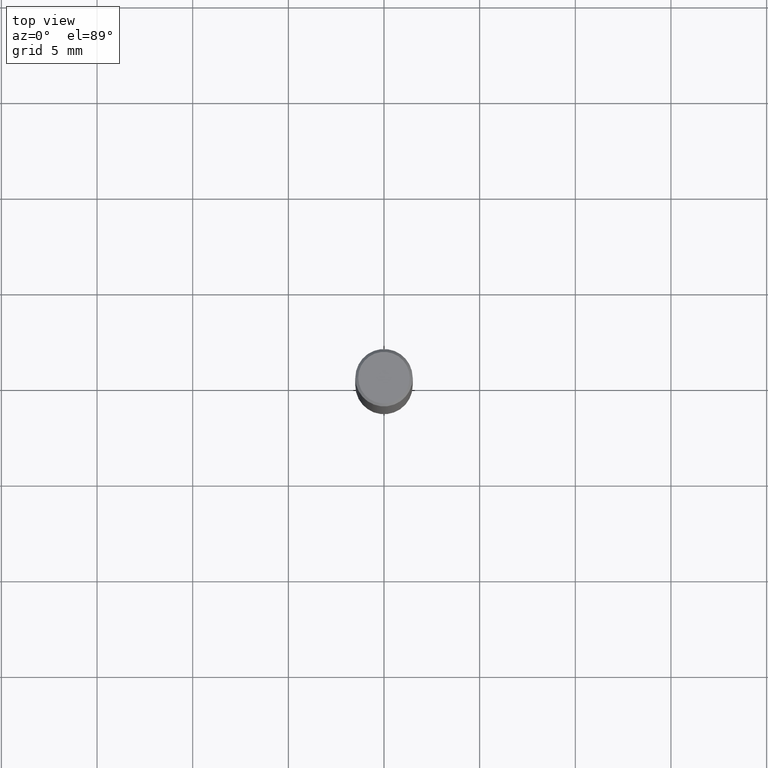
[diagram: clean part render]
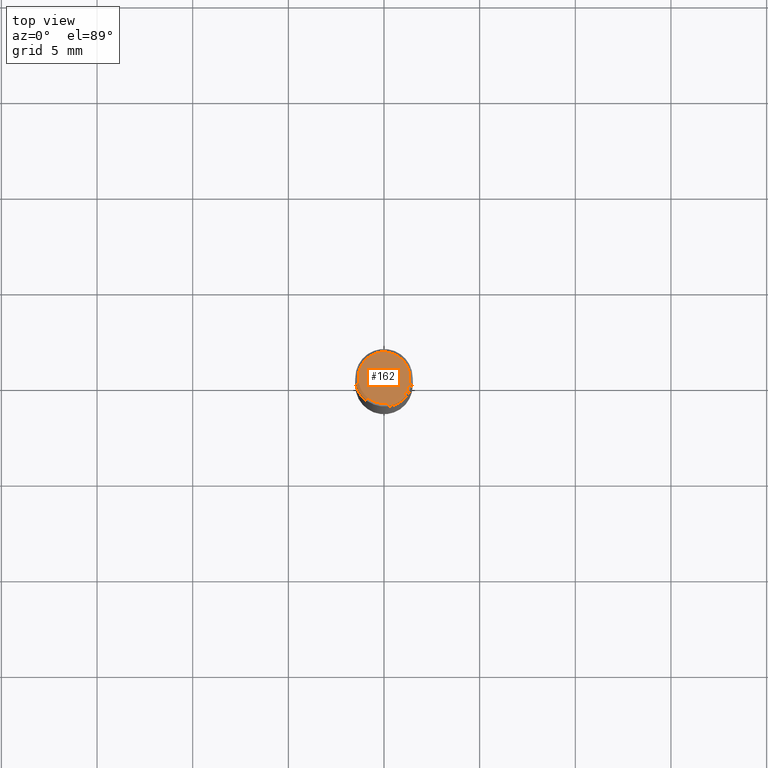
[diagram: same view with one face highlighted and labeled with its STEP entity id]
A machine part, top view. The second image highlights one B-rep face of the part: STEP entity #162.
In plain terms, the highlighted planar face has unit normal (-0, -0, 1).
Its self-contained STEP definition (entity closure, byte-faithful):
#122 = VERTEX_POINT('', #123);
#123 = CARTESIAN_POINT('', (-1.35, 8.26636589424463E-17, 0.));
#129 = EDGE_CURVE('', #122, #122, #130, .T.);
#130 = CIRCLE('', #131, 1.35);
#131 = AXIS2_PLACEMENT_3D('', #132, #133, #134);
#132 = CARTESIAN_POINT('', (-1.09476442525376E-47, 6.26335388750794E-65, -3.72118932669811E-80));
#133 = DIRECTION('', (3.74939945665464E-33, 6.12323399573677E-17, -1.));
#134 = DIRECTION('', (-1., 6.12323399573677E-17, 0.));
#162 = ADVANCED_FACE('', (#163), #166, .T.);
#163 = FACE_OUTER_BOUND('', #164, .T.);
#164 = EDGE_LOOP('', (#165));
#165 = ORIENTED_EDGE('', *, *, #129, .F.);
#166 = PLANE('', #167);
#167 = AXIS2_PLACEMENT_3D('', #168, #169, #170);
#168 = CARTESIAN_POINT('', (2.10010714012405, -2.10010714012405, 8.95084465901642E-15));
#169 = DIRECTION('', (-2.63163976207444E-15, -6.12323399573677E-17, 1.));
#170 = DIRECTION('', (0., 1., 6.12323399573677E-17));